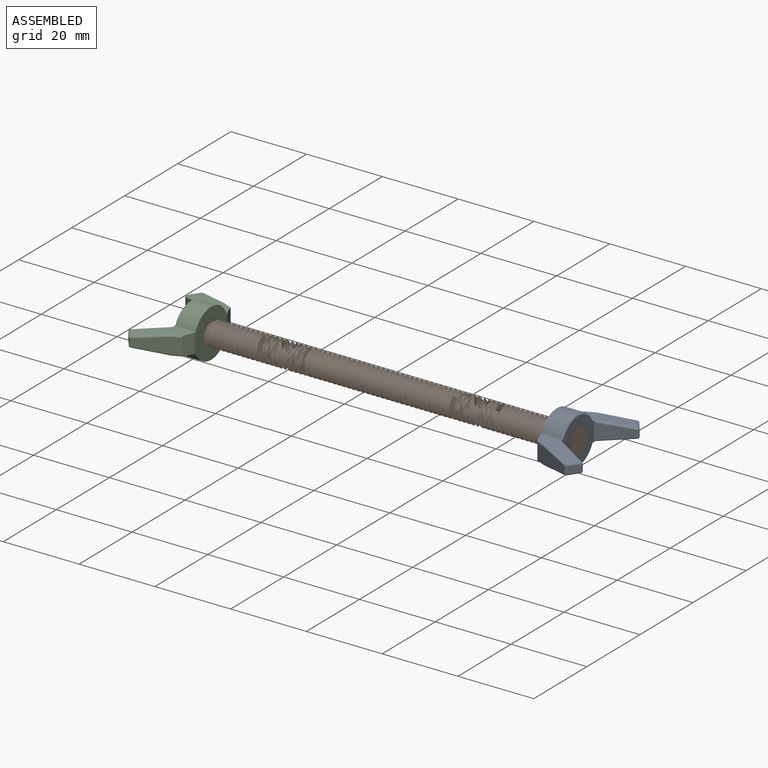
[diagram: assembled view]
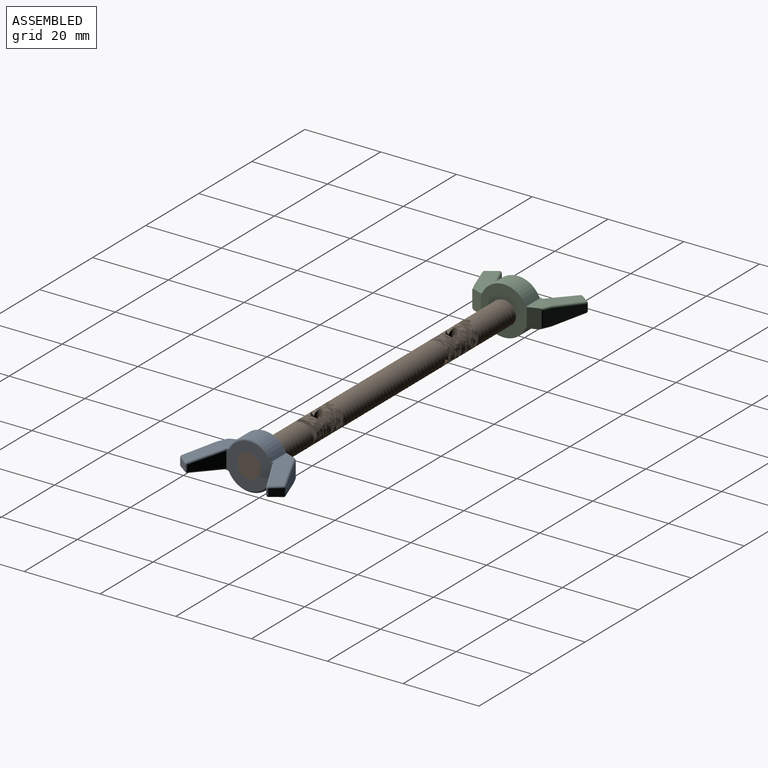
[diagram: assembled view, second angle]
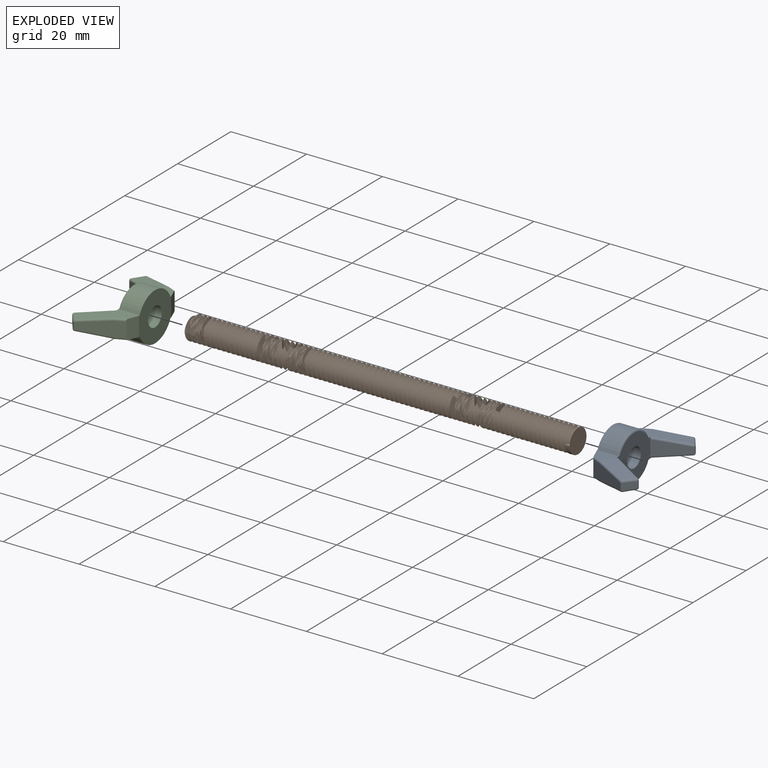
[diagram: exploded view]
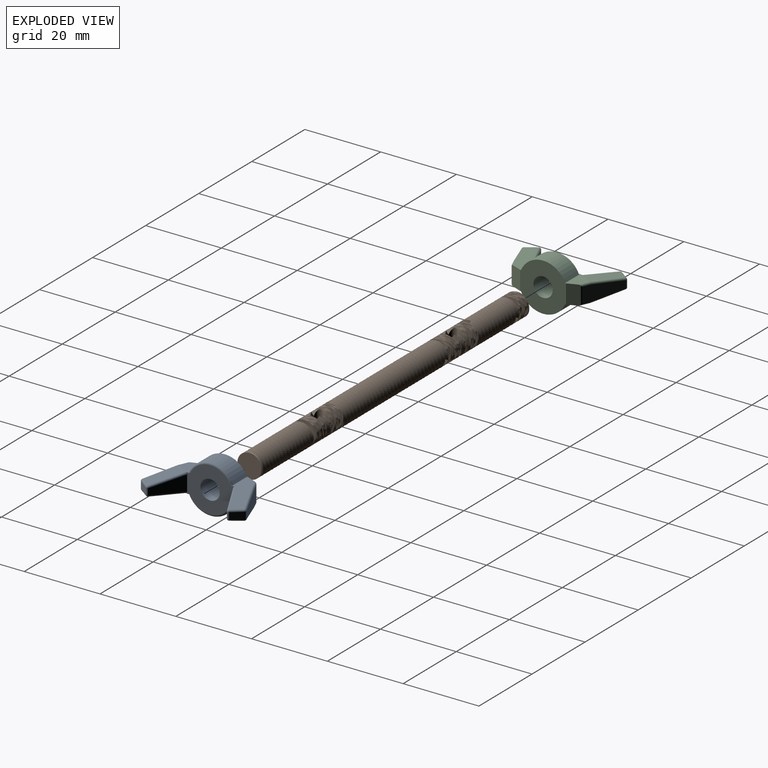
[diagram: exploded view, second angle]
ASSEMBLY  parts=3 mates=2
PART A: 57 faces, bbox 27.7x13.7x14.2 mm
  f0: plane 10.11x4.49mm, normal (0.91,0,-0.41), area 34.7mm2, adj f31,f32,f34,f36,f37,f38
  f1: plane 5.04x2.98mm, normal (0.37,0,-0.93), area 16.2mm2, adj f6,f22,f23,f34,f36,f38
  f2: plane 10.11x4.49mm, normal (-0.91,0,-0.41), area 34.7mm2, adj f46,f48,f49,f51,f52,f53
  f3: plane 5.04x2.98mm, normal (-0.37,0,-0.93), area 16.2mm2, adj f6,f20,f21,f49,f51,f53
  f4: plane 2.62x1.94mm, normal (0.6,0,0.8), area 5.7mm2, adj f26,f27,f32,f33
  f5: plane 8.35x4.21mm, normal (0.89,0,0.45), area 26.6mm2, adj f7,f39,f41,f42
  f6: plane 12.7x12.12mm, normal (0,0,-1), area 105mm2, adj f1,f3,f10,f11,f12,f13,f14,f15
  f7: plane 13.25x11.68mm, normal (0,0,1), area 91.2mm2, adj f5,f9,f10,f12,f14,f15,f16,f17
  f8: plane 2.62x1.94mm, normal (-0.6,0,0.8), area 5.7mm2, adj f42,f43,f47,f48
  f9: plane 8.35x4.21mm, normal (-0.89,0,0.45), area 26.6mm2, adj f7,f24,f27,f28
  f10: plane 5.59x0.82mm, normal (0.08,1,0), area 1.4mm2, adj f6,f7,f11,f23,f55
  f11: cylinder r=6.35mm len=11.64mm, axis (0,0,1), area 74.8mm2, adj f6,f10,f15,f55
  f12: plane 5.59x0.82mm, normal (-0.08,-1,0), area 1.4mm2, adj f6,f7,f13,f20,f54
  f13: cylinder r=6.35mm len=11.64mm, axis (0,0,1), area 74.8mm2, adj f6,f12,f14,f54
  f14: plane 5.59x0.82mm, normal (0.08,-1,0), area 1.4mm2, adj f6,f7,f13,f22,f54
  f15: plane 5.59x0.82mm, normal (-0.08,1,0), area 1.4mm2, adj f6,f7,f11,f21,f55
  f16: plane 10.05x7.31mm, normal (-0.06,0.99,0.11), area 31.6mm2, adj f7,f21,f41,f47,f52,f53
  f17: plane 10.05x7.31mm, normal (-0.06,-0.99,0.11), area 31.6mm2, adj f7,f20,f39,f43,f46,f49
  f18: plane 10.05x7.31mm, normal (0.06,0.99,0.11), area 31.6mm2, adj f7,f23,f28,f33,f37,f38
  f19: plane 10.05x7.31mm, normal (0.06,-0.99,0.11), area 31.6mm2, adj f7,f22,f24,f26,f31,f34
  f20: plane 5.59x3.71mm, normal (0,-1,0), area 13.2mm2, adj f3,f12,f17,f49
  f21: plane 5.59x3.71mm, normal (0,1,0), area 13.2mm2, adj f3,f15,f16,f53
  f22: plane 5.59x3.71mm, normal (0,-1,0), area 13.2mm2, adj f1,f14,f19,f34
  f23: plane 5.59x3.71mm, normal (0,1,0), area 13.2mm2, adj f1,f10,f18,f38
  f24: cylinder r=0.51mm len=8.54mm, axis (-0.45,-0.12,-0.89), area 7.5mm2, adj f7,f9,f19,f25
  f25: sphere r=0.51mm, area 0.4mm2, adj f24,f26,f27
  f26: cylinder r=0.51mm len=2.89mm, axis (0.8,-0.02,-0.6), area 2.4mm2, adj f4,f19,f25,f29
  f27: cylinder r=0.51mm len=1.67mm, axis (0,1,0), area 1.5mm2, adj f4,f9,f25,f30
  f28: cylinder r=0.51mm len=8.54mm, axis (0.45,-0.12,0.89), area 7.5mm2, adj f7,f9,f18,f30
  f29: sphere r=0.51mm, area 0.3mm2, adj f26,f31,f32
  f30: sphere r=0.51mm, area 0.4mm2, adj f27,f28,f33
  f31: cylinder r=0.51mm len=8.37mm, axis (-0.4,-0.12,-0.91), area 7.1mm2, adj f0,f19,f29,f34
  f32: cylinder r=0.51mm len=1.81mm, axis (0,1,0), area 1.2mm2, adj f0,f4,f29,f35
  f33: cylinder r=0.51mm len=2.89mm, axis (-0.8,-0.02,0.6), area 2.4mm2, adj f4,f18,f30,f35
  f34: cylinder r=0.51mm len=2.93mm, axis (-0.41,0,-0.91), area 2.1mm2, adj f0,f1,f19,f22,f31,f36
  f35: sphere r=0.51mm, area 0.3mm2, adj f32,f33,f37
  f36: cylinder r=0.51mm len=4.74mm, axis (0,1,0), area 1.7mm2, adj f0,f1,f34,f38
  f37: cylinder r=0.51mm len=8.37mm, axis (0.4,-0.12,0.91), area 7.1mm2, adj f0,f18,f35,f38
  f38: cylinder r=0.51mm len=2.93mm, axis (0.41,0,0.91), area 2.1mm2, adj f0,f1,f18,f23,f36,f37
  f39: cylinder r=0.51mm len=8.54mm, axis (-0.45,0.12,0.89), area 7.5mm2, adj f5,f7,f17,f40
  f40: sphere r=0.51mm, area 0.4mm2, adj f39,f42,f43
  f41: cylinder r=0.51mm len=8.54mm, axis (0.45,0.12,-0.89), area 7.5mm2, adj f5,f7,f16,f44
  f42: cylinder r=0.51mm len=1.67mm, axis (0,1,0), area 1.5mm2, adj f5,f8,f40,f44
  f43: cylinder r=0.51mm len=2.89mm, axis (0.8,0.02,0.6), area 2.4mm2, adj f8,f17,f40,f45
  f44: sphere r=0.51mm, area 0.4mm2, adj f41,f42,f47
  f45: sphere r=0.51mm, area 0.3mm2, adj f43,f46,f48
  f46: cylinder r=0.51mm len=8.37mm, axis (-0.4,0.12,0.91), area 7.1mm2, adj f2,f17,f45,f49
  f47: cylinder r=0.51mm len=2.89mm, axis (-0.8,0.02,-0.6), area 2.4mm2, adj f8,f16,f44,f50
  f48: cylinder r=0.51mm len=1.81mm, axis (0,1,0), area 1.2mm2, adj f2,f8,f45,f50
  f49: cylinder r=0.51mm len=2.93mm, axis (-0.41,0,0.91), area 2.1mm2, adj f2,f3,f17,f20,f46,f51
  f50: sphere r=0.51mm, area 0.3mm2, adj f47,f48,f52
  f51: cylinder r=0.51mm len=4.74mm, axis (0,1,0), area 1.7mm2, adj f2,f3,f49,f53
  f52: cylinder r=0.51mm len=8.37mm, axis (0.4,0.12,-0.91), area 7.1mm2, adj f2,f16,f50,f53
  f53: cylinder r=0.51mm len=2.93mm, axis (0.41,0,-0.91), area 2.1mm2, adj f2,f3,f16,f21,f51,f52
  f54: torus R=5.84mm, axis (0,0,-1), area 11.2mm2, adj f7,f12,f13,f14
  f55: torus R=5.84mm, axis (0,0,-1), area 11.2mm2, adj f7,f10,f11,f15
  f56: cylinder r=2.55mm len=5.59mm, axis (0,0,1), area 89.6mm2, adj f6,f7
PART B: 36 faces, bbox 102.4x6.4x7.3 mm
  f0: cylinder r=3.17mm len=5.68mm, axis (-1,0,0), area 0.2mm2, adj f14,f26,f35
  f1: cylinder r=3.17mm len=5.66mm, axis (-1,0,0), area 0.2mm2, adj f12,f24,f35
  f2: cylinder r=3.17mm len=23.82mm, axis (-1,0,0), area -25.7mm2, adj f11,f22,f32,f35
  f3: cylinder r=3.17mm len=6.11mm, axis (-1,0,0), area 0.2mm2, adj f11,f23,f35
  f4: cylinder r=3.17mm len=5.52mm, axis (-1,0,0), area 0.2mm2, adj f13,f25,f35
  f5: cylinder r=3.17mm len=48.19mm, axis (-1,0,0), area 178.8mm2, adj f15,f16,f26,f34,f35
  f6: cylinder r=3.17mm len=5.68mm, axis (-1,0,0), area 0.2mm2, adj f19,f30,f34
  f7: cylinder r=3.17mm len=5.66mm, axis (-1,0,0), area 0.2mm2, adj f17,f28,f34
  f8: cylinder r=3.17mm len=6.11mm, axis (-1,0,0), area 0.2mm2, adj f16,f27,f34
  f9: cylinder r=3.17mm len=5.52mm, axis (-1,0,0), area 0.2mm2, adj f18,f29,f34
  f10: cylinder r=3.17mm len=24.37mm, axis (-1,0,0), area 41.1mm2, adj f20,f21,f30,f31,f33,f34
  f11: bspline ~25.16x7.33mm, area 394.9mm2, adj f2,f3,f22,f32,f35
  f12: bspline ~7.33x4.76mm, area 7.4mm2, adj f1,f22,f35
  f13: bspline ~7.33x4.76mm, area 6.2mm2, adj f4,f23,f35
  f14: bspline ~7.33x4.76mm, area 6.1mm2, adj f0,f24,f35
  f15: bspline ~7.33x4.76mm, area 7.2mm2, adj f5,f25,f35
  f16: bspline ~49.08x7.33mm, area 783.3mm2, adj f5,f8,f26,f34,f35
  f17: bspline ~7.33x4.76mm, area 7.4mm2, adj f7,f26,f34
  f18: bspline ~7.33x4.76mm, area 6.2mm2, adj f9,f27,f34
  f19: bspline ~7.33x4.76mm, area 6.1mm2, adj f6,f28,f34
  f20: bspline ~7.33x4.76mm, area 7.2mm2, adj f10,f29,f34
  f21: bspline ~24.53x7.33mm, area 389.3mm2, adj f10,f30,f33,f34
  f22: bspline ~25.4x7.33mm, area 397.5mm2, adj f2,f11,f12,f32,f35
  f23: bspline ~7.33x4.76mm, area 7.1mm2, adj f3,f13,f35
  f24: bspline ~7.33x4.76mm, area 6.1mm2, adj f1,f14,f35
  f25: bspline ~7.33x4.76mm, area 6.3mm2, adj f4,f15,f35
  f26: bspline ~49.74x7.33mm, area 803.5mm2, adj f0,f5,f16,f17,f34,f35
  f27: bspline ~7.33x4.76mm, area 7.1mm2, adj f8,f18,f34
  f28: bspline ~7.33x4.76mm, area 6.1mm2, adj f7,f19,f34
  f29: bspline ~7.33x4.76mm, area 6.3mm2, adj f9,f20,f34
  f30: bspline ~24.55x7.33mm, area 391.2mm2, adj f6,f10,f21,f33,f34
  f31: plane 6.35x6.35mm, normal (1,0,0), area 31.7mm2, adj f10
  f32: plane 5.33x5.32mm, normal (-1,0,0), area 22.2mm2, adj f2,f11,f22
  f33: plane 1.24x1.1mm, normal (0,0,1), area 0.7mm2, adj f10,f21,f30
  f34: cylinder r=1.59mm len=6.35mm, axis (0,0,-1), area 47.3mm2, adj f5,f6,f7,f8,f9,f10,f16,f17
  f35: cylinder r=1.59mm len=6.35mm, axis (0,0,-1), area 47.3mm2, adj f0,f1,f2,f3,f4,f5,f11,f12
PART C: same geometry as A
PLACE A rot(axis=(0.58,0.58,0.58),120deg) t=(62.64,-0.33,-4.83)mm
PLACE B t=(-39.27,-0.95,-11.18)mm
PLACE C rot(axis=(-0.58,-0.58,0.58),120deg) t=(-40.08,-0.78,-17.49)mm
MATE fastened A.f56 <-> B.f0  axis (1,0,0) through (62.33,-0.95,-11.18)mm
MATE fastened C.f56 <-> B.f32  axis (-1,0,0) through (-39.27,-1.4,-11.14)mm
